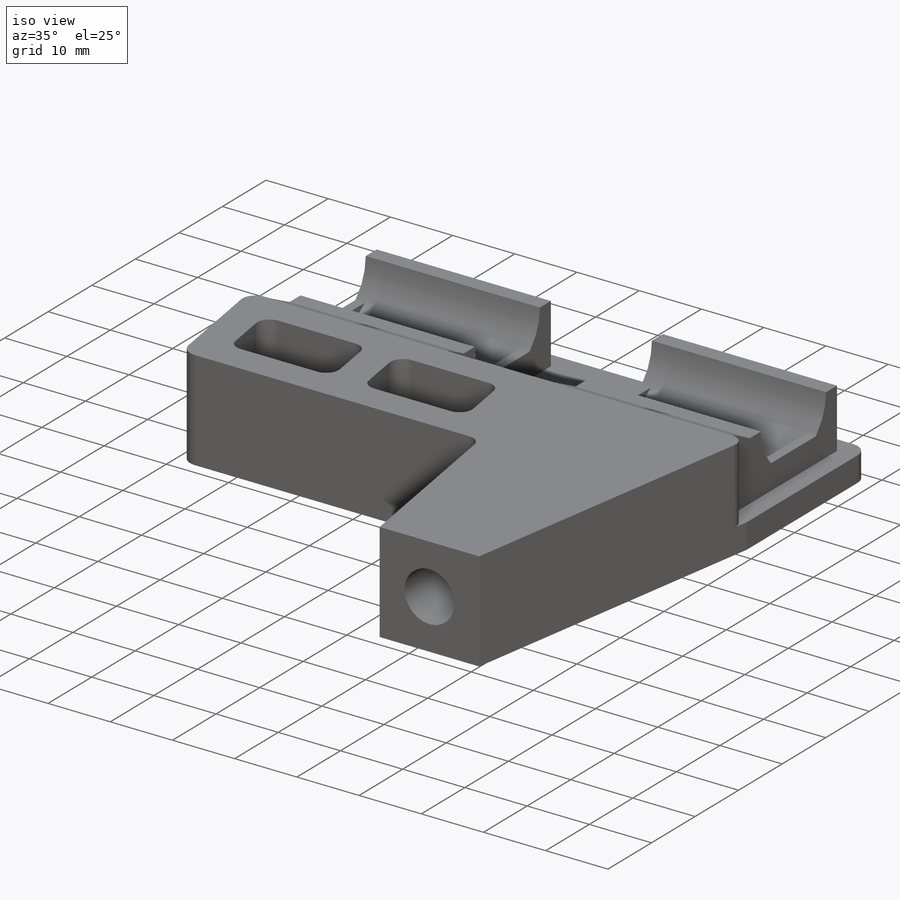
[diagram: iso view]
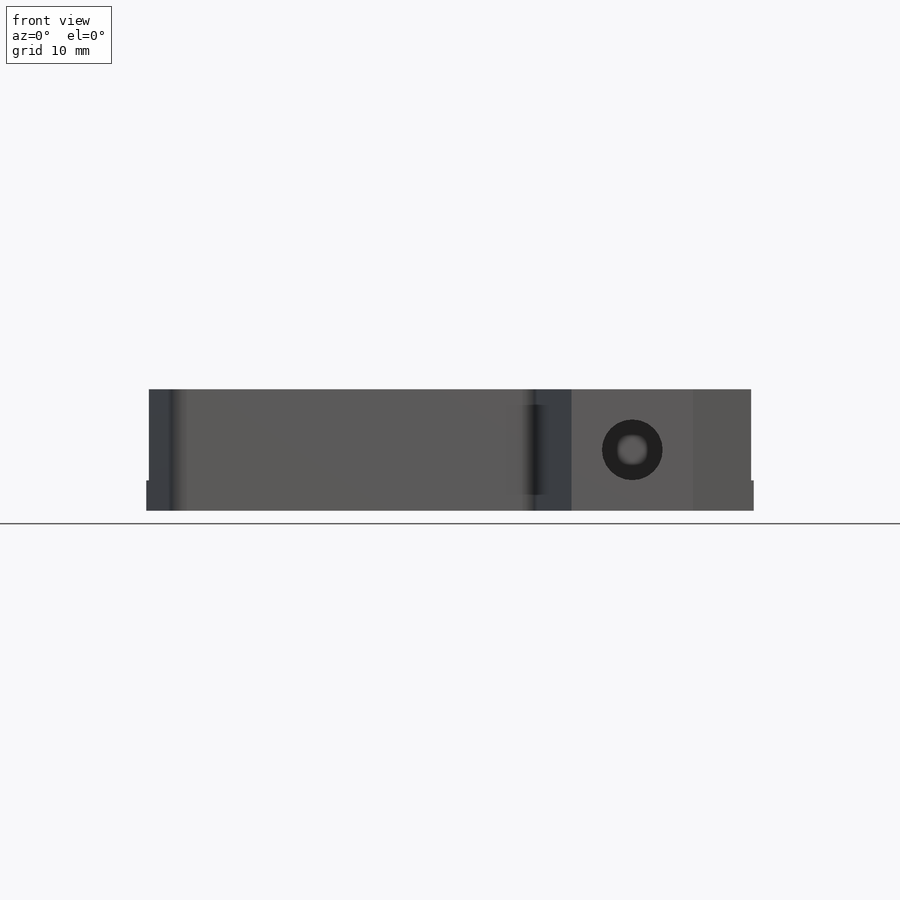
[diagram: front view]
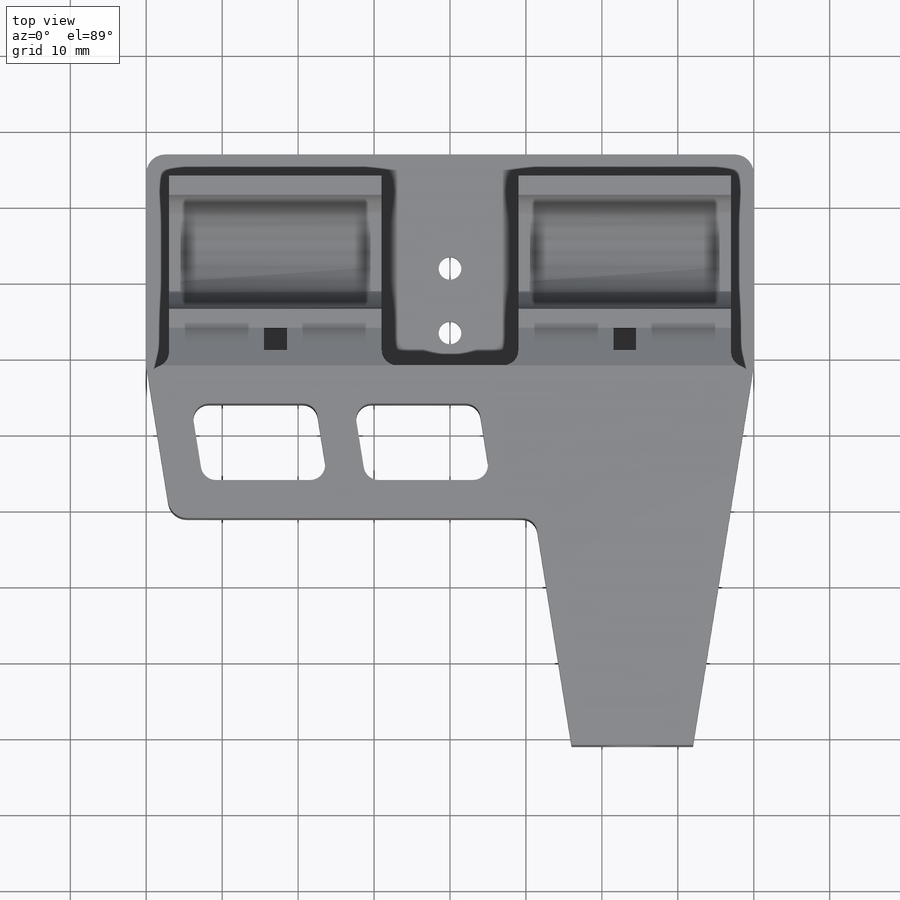
[diagram: top view]
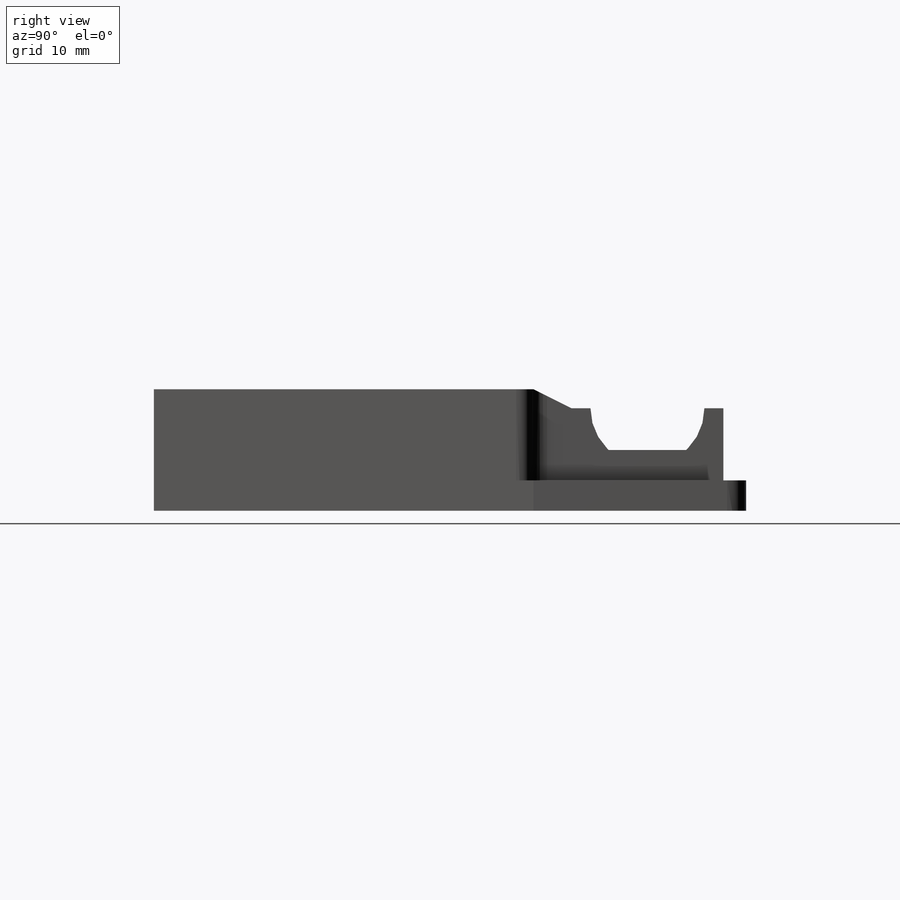
[diagram: right view]
SOLIDWORKS PART (.sldprt)
format: sldprt  version: not decoded by parser v0  size: 585,728 bytes
history: native  units: mm
features: sketch x20, cut_extrude x10, fillet x10, extrude x6, plane x5, sweep x2, material x1 (+16 scaffold rows collapsed)
feature tree (70):
  scaffold x16  (default folders/planes/origin — collapsed)
  material  "Material <not specified>"
  sketch  "Sketch7"  dims[c1.D1=~2.236626mm c2.D1=45.0deg]
  extrude  "Extrude2"  Depth=4mm
  sketch  "Sketch8"  dims[D1=28.0mm]
  extrude  "Extrude3"  Depth=9.5mm
  sketch  "Sketch10"  dims[D1=1.5mm]
  cut_extrude  "Extrude6"  Depth=28mm
  plane  "Plane3"  Offset=1.5mm
  sketch  "Sketch15"  dims[D1=~2.901637mm]
  cut_extrude  "Extrude7"  Depth=25mm
  sketch  "Sketch16"
  plane  "Plane4"  Offset=14mm
  sketch  "Sketch17"
  sweep  "Cut-Sweep1"
  extrude  "Extrude8"  [1 undecoded]
  sketch  "Sketch8<4>"  dims[D1=9.5mm]
  sketch  "Sketch18"  dims[D1=4.0mm]
  cut_extrude  "Extrude9"  Depth=28mm
  plane  "Plane5"  Offset=1.5mm
  sketch  "Sketch19"  dims[D1=~8.263638mm]
  cut_extrude  "Extrude10"  Depth=25mm
  sketch  "Sketch20"  dims[D1=3.0mm]
  plane  "Plane6"  Offset=14mm
  sketch  "Sketch21"
  sweep  "Cut-Sweep2"
  fillet  "Fillet1"  Radius=2.5mm
  sketch  "Sketch22"  dims[D1=2.5mm]
  extrude  "Extrude11"  Depth=16mm
  sketch  "Sketch23"  dims[D1=~2.681179mm]
  cut_extrude  "Extrude12"  Depth=40mm
  sketch  "Sketch25"
  extrude  "Extrude13"  Depth=12mm
  sketch  "Sketch26"
  cut_extrude  "Extrude14"  [1 undecoded]
  fillet  "Fillet2"  Radius=2.5mm
  fillet  "Fillet9"  Radius=2mm
  fillet  "Fillet10"  Radius=2mm
  fillet  "Fillet11"  Radius=2mm
  sketch  "Sketch27"
  extrude  "Extrude15"  Depth=12mm
  sketch  "Sketch28"
  cut_extrude  "Extrude16"  [1 undecoded]
  fillet  "Fillet12"  Radius=2mm
  fillet  "Fillet13"  Radius=2mm
  fillet  "Fillet14"  Radius=2mm
  fillet  "Fillet15"  Radius=2mm
  plane  "Plane7"  Offset=0mm
  sketch  "Sketch30"  dims[D1=3.0mm]
  cut_extrude  "Extrude17"  Depth=12mm
  sketch  "Sketch31"  dims[D1=3.0mm]
  cut_extrude  "Extrude18"  Depth=12mm
  fillet  "Fillet16"  Radius=2mm
  sketch  "Sketch32"  dims[D1=4.5mm]
  cut_extrude  "Extrude19"  [1 undecoded]
decode coverage: 35 of 48 modeling features carry decoded parameters
note: ~ marks probable driven/reference dimensions
note: 4 parameter values undecoded
summary: no parameter record found for 4 features
note: suppression state not decoded; provenance and decode notes live in map.json
